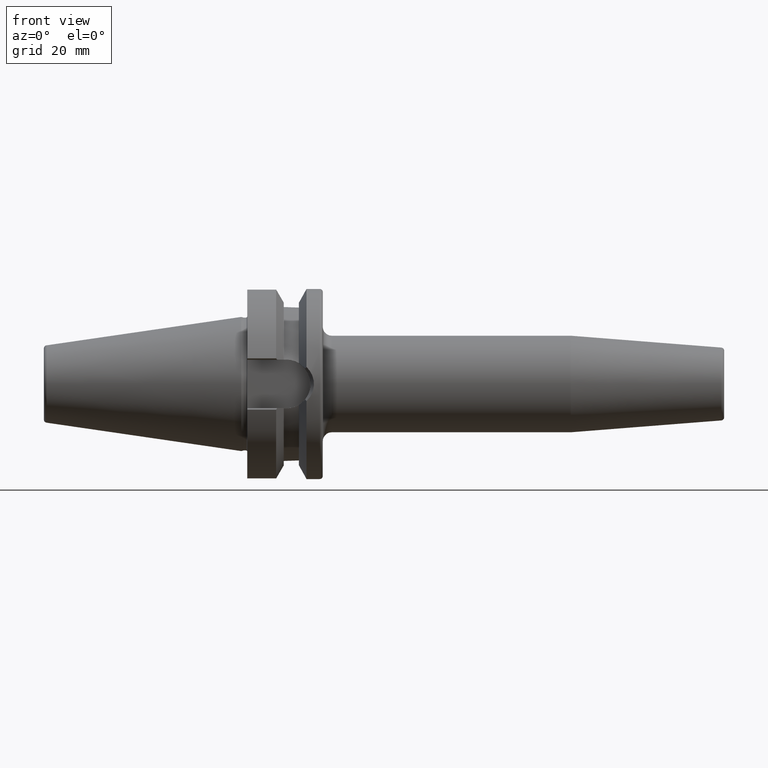
[diagram: clean part render]
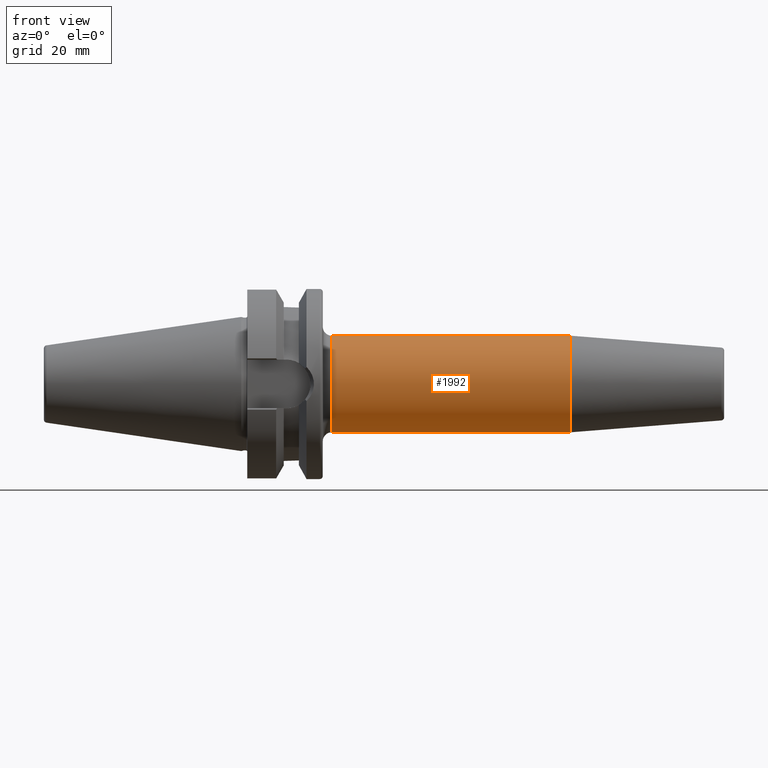
[diagram: same view with one face highlighted and labeled with its STEP entity id]
A machine part, front view. The second image highlights one B-rep face of the part: STEP entity #1992.
In plain terms, the highlighted cylindrical surface (partial cylindrical patch) has radius 16 mm, axis along (1, 0, 0).
Its self-contained STEP definition (entity closure, byte-faithful):
#463=DIRECTION('',(-1.E0,0.E0,0.E0));
#464=VECTOR('',#463,7.917518105530E1);
#465=CARTESIAN_POINT('',(1.091751810553E2,0.E0,-1.6E1));
#466=LINE('',#465,#464);
#467=DIRECTION('',(-1.E0,0.E0,0.E0));
#468=VECTOR('',#467,7.917518105530E1);
#469=CARTESIAN_POINT('',(1.091751810553E2,0.E0,1.6E1));
#470=LINE('',#469,#468);
#471=CARTESIAN_POINT('',(1.091751810553E2,0.E0,0.E0));
#472=DIRECTION('',(-1.E0,0.E0,0.E0));
#473=DIRECTION('',(0.E0,0.E0,-1.E0));
#474=AXIS2_PLACEMENT_3D('',#471,#472,#473);
#481=CARTESIAN_POINT('',(3.E1,0.E0,0.E0));
#482=DIRECTION('',(-1.E0,0.E0,0.E0));
#483=DIRECTION('',(0.E0,0.E0,-1.E0));
#484=AXIS2_PLACEMENT_3D('',#481,#482,#483);
#1227=CARTESIAN_POINT('',(1.091751810553E2,0.E0,-1.6E1));
#1228=VERTEX_POINT('',#1227);
#1229=CARTESIAN_POINT('',(3.E1,0.E0,-1.6E1));
#1230=VERTEX_POINT('',#1229);
#1257=CARTESIAN_POINT('',(1.091751810553E2,0.E0,1.6E1));
#1258=VERTEX_POINT('',#1257);
#1259=CARTESIAN_POINT('',(3.E1,0.E0,1.6E1));
#1260=VERTEX_POINT('',#1259);
#1980=CARTESIAN_POINT('',(2.035E1,0.E0,0.E0));
#1981=DIRECTION('',(1.E0,0.E0,0.E0));
#1982=DIRECTION('',(0.E0,0.E0,1.E0));
#1983=AXIS2_PLACEMENT_3D('',#1980,#1981,#1982);
#1984=CYLINDRICAL_SURFACE('',#1983,1.6E1);
#1985=ORIENTED_EDGE('',*,*,#1970,.T.);
#1987=ORIENTED_EDGE('',*,*,#1986,.T.);
#1988=ORIENTED_EDGE('',*,*,#1973,.F.);
#1989=ORIENTED_EDGE('',*,*,#1944,.F.);
#1990=EDGE_LOOP('',(#1985,#1987,#1988,#1989));
#1991=FACE_OUTER_BOUND('',#1990,.F.);
#1992=ADVANCED_FACE('',(#1991),#1984,.T.);
#475=CIRCLE('',#474,1.6E1);
#485=CIRCLE('',#484,1.6E1);
#1944=EDGE_CURVE('',#1228,#1258,#475,.T.);
#1970=EDGE_CURVE('',#1228,#1230,#466,.T.);
#1973=EDGE_CURVE('',#1258,#1260,#470,.T.);
#1986=EDGE_CURVE('',#1230,#1260,#485,.T.);